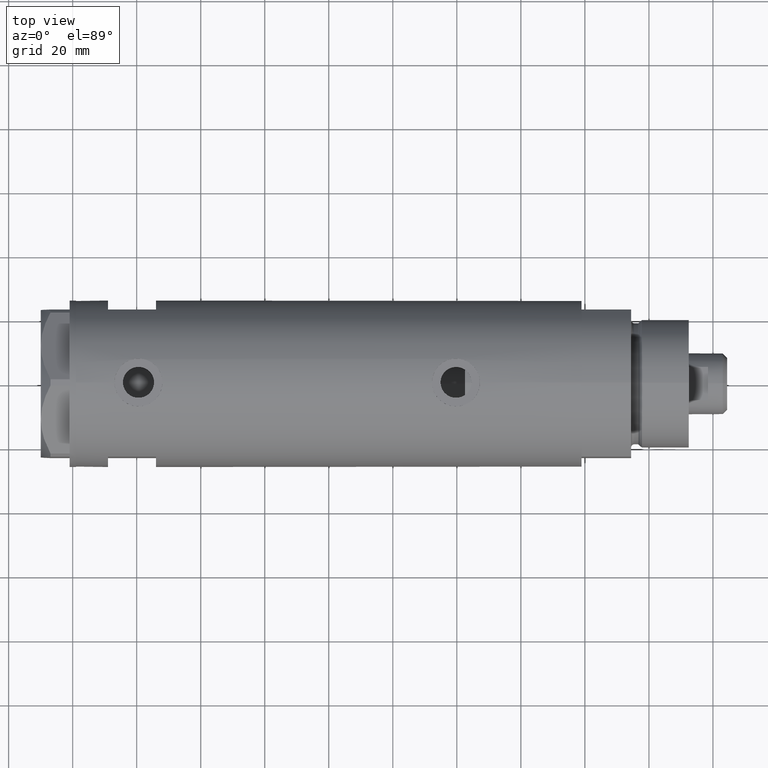
[diagram: clean part render]
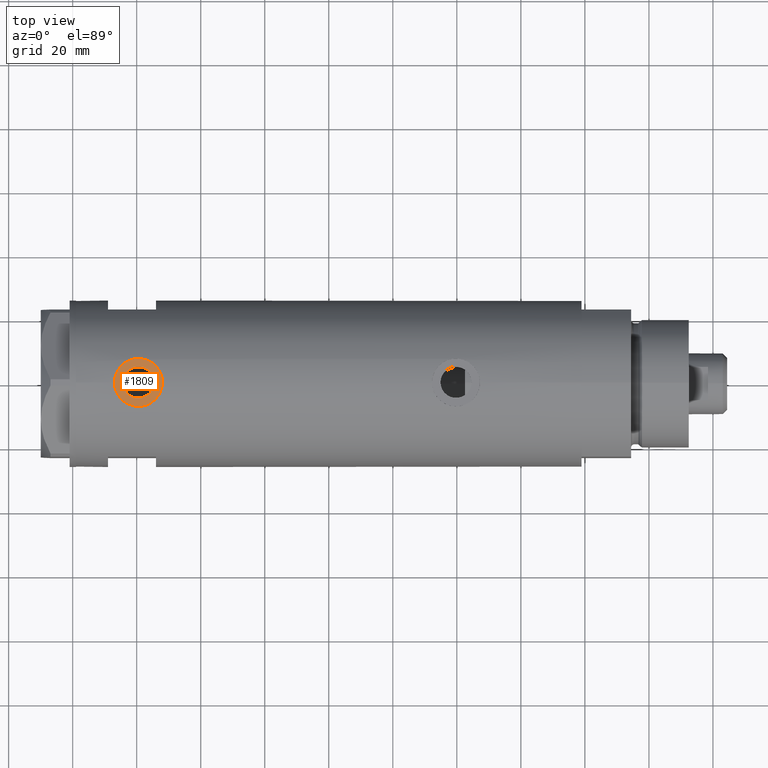
[diagram: same view with one face highlighted and labeled with its STEP entity id]
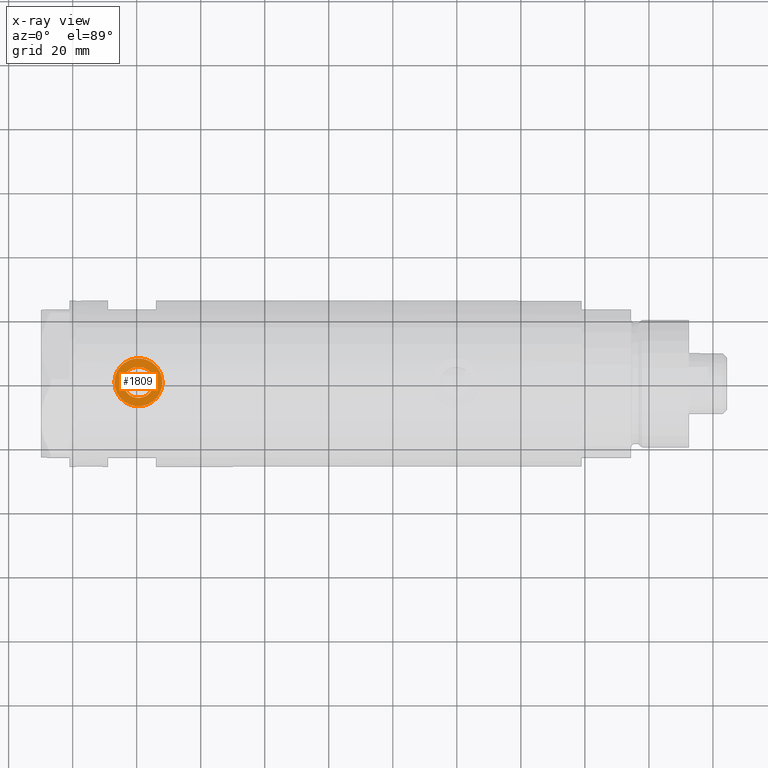
[diagram: x-ray of the same camera — body ghosted, the highlighted face saturated]
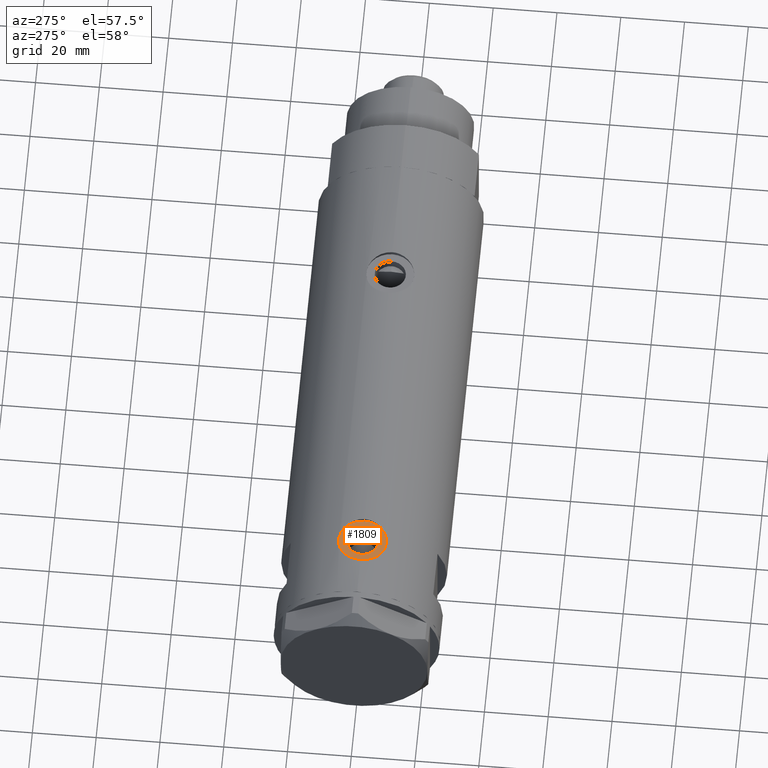
[diagram: same view with one face highlighted and labeled with its STEP entity id]
A machine part, top view. The second image highlights one B-rep face of the part: STEP entity #1809.
The next image is the same camera in x-ray: the body ghosted, the highlighted face saturated — about 0% of this face is hidden behind the body in this view.
A second angle (auxiliary view) of the same face is appended — the face is thin or edge-on in the first view.
In plain terms, the highlighted planar face has unit normal (0, 0, 1).
Its self-contained STEP definition (entity closure, byte-faithful):
#360 = DIRECTION ( 'NONE',  ( 1.000000000000000000, 0.000000000000000000, 0.000000000000000000 ) ) ;
#377 = ORIENTED_EDGE ( 'NONE', *, *, #3205, .T. ) ;
#422 = AXIS2_PLACEMENT_3D ( 'NONE', #1484, #360, #4752 ) ;
#503 = CIRCLE ( 'NONE', #422, 7.500000000000000000 ) ;
#662 = CIRCLE ( 'NONE', #4164, 7.500000000000000000 ) ;
#744 = AXIS2_PLACEMENT_3D ( 'NONE', #2036, #3557, #2385 ) ;
#770 = CARTESIAN_POINT ( 'NONE',  ( 24.80000000000000426, 0.000000000000000000, 51.95000000000000284 ) ) ;
#957 = DIRECTION ( 'NONE',  ( 0.000000000000000000, 0.000000000000000000, -1.000000000000000000 ) ) ;
#1257 = FACE_OUTER_BOUND ( 'NONE', #3012, .T. ) ;
#1416 = VERTEX_POINT ( 'NONE', #4764 ) ;
#1428 = EDGE_LOOP ( 'NONE', ( #2106, #4068 ) ) ;
#1484 = CARTESIAN_POINT ( 'NONE',  ( 24.80000000000000426, 0.000000000000000000, 59.45000000000000284 ) ) ;
#1809 = ADVANCED_FACE ( 'NONE', ( #4611, #1257 ), #4214, .T. ) ;
#1815 = DIRECTION ( 'NONE',  ( 0.000000000000000000, 0.000000000000000000, -1.000000000000000000 ) ) ;
#1829 = DIRECTION ( 'NONE',  ( 1.000000000000000000, 0.000000000000000000, 0.000000000000000000 ) ) ;
#1955 = VERTEX_POINT ( 'NONE', #770 ) ;
#2036 = CARTESIAN_POINT ( 'NONE',  ( 24.80000000000000426, 0.000000000000000000, 59.45000000000000284 ) ) ;
#2106 = ORIENTED_EDGE ( 'NONE', *, *, #4177, .F. ) ;
#2385 = DIRECTION ( 'NONE',  ( 0.000000000000000000, 0.000000000000000000, -1.000000000000000000 ) ) ;
#2398 = EDGE_CURVE ( 'NONE', #2825, #1416, #4646, .T. ) ;
#2472 = DIRECTION ( 'NONE',  ( 1.000000000000000000, 0.000000000000000000, 0.000000000000000000 ) ) ;
#2532 = CARTESIAN_POINT ( 'NONE',  ( 24.80000000000000426, 0.000000000000000000, 59.45000000000000284 ) ) ;
#2632 = CARTESIAN_POINT ( 'NONE',  ( 24.80000000000000426, 0.000000000000000000, 59.45000000000000284 ) ) ;
#2825 = VERTEX_POINT ( 'NONE', #3044 ) ;
#2835 = CARTESIAN_POINT ( 'NONE',  ( 24.80000000000000426, 0.000000000000000000, 59.45000000000000284 ) ) ;
#2868 = AXIS2_PLACEMENT_3D ( 'NONE', #2532, #3254, #957 ) ;
#2916 = EDGE_CURVE ( 'NONE', #1955, #4435, #503, .T. ) ;
#2973 = DIRECTION ( 'NONE',  ( 0.000000000000000000, 0.000000000000000000, -1.000000000000000000 ) ) ;
#3012 = EDGE_LOOP ( 'NONE', ( #4163, #377 ) ) ;
#3044 = CARTESIAN_POINT ( 'NONE',  ( 24.80000000000000426, 5.957906677851880498E-16, 64.31499999999999773 ) ) ;
#3205 = EDGE_CURVE ( 'NONE', #4435, #1955, #662, .T. ) ;
#3254 = DIRECTION ( 'NONE',  ( 1.000000000000000000, 0.000000000000000000, 0.000000000000000000 ) ) ;
#3478 = CIRCLE ( 'NONE', #2868, 4.865000000000001101 ) ;
#3557 = DIRECTION ( 'NONE',  ( 1.000000000000000000, 0.000000000000000000, 0.000000000000000000 ) ) ;
#4068 = ORIENTED_EDGE ( 'NONE', *, *, #2398, .F. ) ;
#4163 = ORIENTED_EDGE ( 'NONE', *, *, #2916, .T. ) ;
#4164 = AXIS2_PLACEMENT_3D ( 'NONE', #2632, #1829, #2973 ) ;
#4177 = EDGE_CURVE ( 'NONE', #1416, #2825, #3478, .T. ) ;
#4214 = PLANE ( 'NONE',  #744 ) ;
#4435 = VERTEX_POINT ( 'NONE', #4827 ) ;
#4611 = FACE_BOUND ( 'NONE', #1428, .T. ) ;
#4646 = CIRCLE ( 'NONE', #4722, 4.865000000000001101 ) ;
#4722 = AXIS2_PLACEMENT_3D ( 'NONE', #2835, #2472, #1815 ) ;
#4752 = DIRECTION ( 'NONE',  ( 0.000000000000000000, 0.000000000000000000, -1.000000000000000000 ) ) ;
#4764 = CARTESIAN_POINT ( 'NONE',  ( 24.80000000000000426, 0.000000000000000000, 54.58500000000000085 ) ) ;
#4827 = CARTESIAN_POINT ( 'NONE',  ( 24.80000000000000426, 9.184850993605140056E-16, 66.95000000000000284 ) ) ;